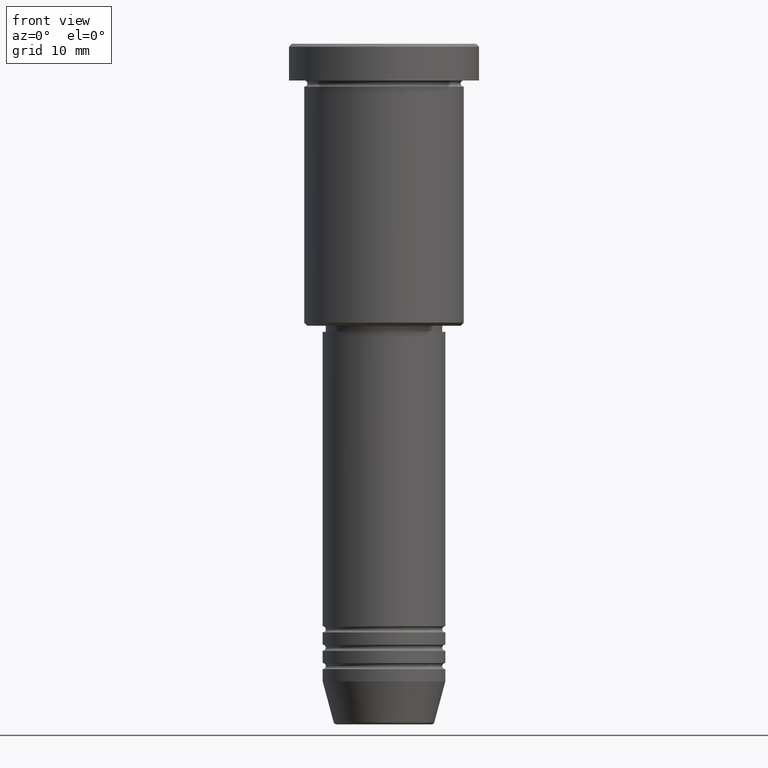
[diagram: clean part render]
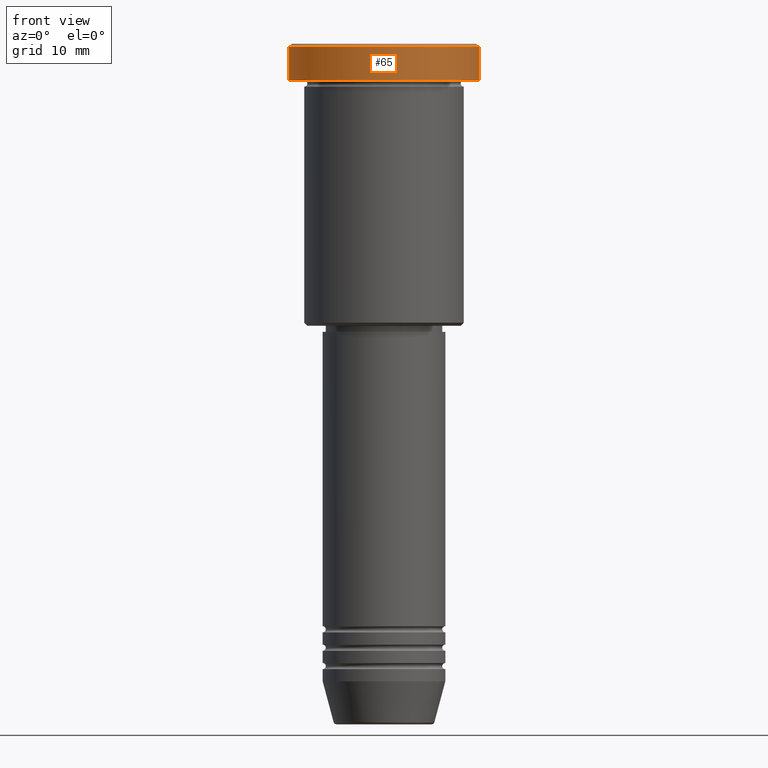
[diagram: same view with one face highlighted and labeled with its STEP entity id]
A machine part, front view. The second image highlights one B-rep face of the part: STEP entity #65.
In plain terms, the highlighted cylindrical surface (partial cylindrical patch) has radius 15.5 mm, axis along (-0, -0, 1).
Its self-contained STEP definition (entity closure, byte-faithful):
#1 = CARTESIAN_POINT ( 'NONE',  ( -15.50000000000000000, 1.898202538678397557E-15, 0.000000000000000000 ) ) ;
#5 = DIRECTION ( 'NONE',  ( 1.000000000000000000, 0.000000000000000000, 0.000000000000000000 ) ) ;
#14 = EDGE_CURVE ( 'NONE', #774, #752, #126, .T. ) ;
#21 = DIRECTION ( 'NONE',  ( 0.000000000000000000, 0.000000000000000000, -1.000000000000000000 ) ) ;
#38 = CARTESIAN_POINT ( 'NONE',  ( 0.000000000000000000, 0.000000000000000000, 0.000000000000000000 ) ) ;
#46 = VERTEX_POINT ( 'NONE', #760 ) ;
#65 = ADVANCED_FACE ( 'NONE', ( #128 ), #577, .T. ) ;
#98 = LINE ( 'NONE', #134, #712 ) ;
#126 = CIRCLE ( 'NONE', #798, 15.50000000000000000 ) ;
#128 = FACE_OUTER_BOUND ( 'NONE', #999, .T. ) ;
#134 = CARTESIAN_POINT ( 'NONE',  ( 15.50000000000000000, 0.000000000000000000, 0.000000000000000000 ) ) ;
#184 = VECTOR ( 'NONE', #932, 1000.000000000000000 ) ;
#280 = EDGE_CURVE ( 'NONE', #786, #752, #1016, .T. ) ;
#297 = AXIS2_PLACEMENT_3D ( 'NONE', #38, #675, #763 ) ;
#318 = CARTESIAN_POINT ( 'NONE',  ( 0.000000000000000000, 0.000000000000000000, -0.5000000000000125455 ) ) ;
#357 = CARTESIAN_POINT ( 'NONE',  ( -15.50000000000000000, 1.898202538678397557E-15, -0.5000000000000125455 ) ) ;
#360 = EDGE_CURVE ( 'NONE', #786, #46, #551, .T. ) ;
#365 = ORIENTED_EDGE ( 'NONE', *, *, #14, .T. ) ;
#380 = EDGE_CURVE ( 'NONE', #46, #774, #98, .T. ) ;
#441 = ORIENTED_EDGE ( 'NONE', *, *, #380, .T. ) ;
#551 = CIRCLE ( 'NONE', #679, 15.50000000000000000 ) ;
#560 = ORIENTED_EDGE ( 'NONE', *, *, #280, .F. ) ;
#577 = CYLINDRICAL_SURFACE ( 'NONE', #297, 15.50000000000000000 ) ;
#582 = DIRECTION ( 'NONE',  ( 1.000000000000000000, 0.000000000000000000, 0.000000000000000000 ) ) ;
#636 = CARTESIAN_POINT ( 'NONE',  ( -15.50000000000000000, 1.898202538678397557E-15, -5.999999999999995559 ) ) ;
#675 = DIRECTION ( 'NONE',  ( -0.000000000000000000, -0.000000000000000000, 1.000000000000000000 ) ) ;
#679 = AXIS2_PLACEMENT_3D ( 'NONE', #1096, #738, #5 ) ;
#712 = VECTOR ( 'NONE', #1050, 1000.000000000000000 ) ;
#738 = DIRECTION ( 'NONE',  ( -0.000000000000000000, -0.000000000000000000, 1.000000000000000000 ) ) ;
#752 = VERTEX_POINT ( 'NONE', #357 ) ;
#760 = CARTESIAN_POINT ( 'NONE',  ( 15.50000000000000000, 0.000000000000000000, -5.999999999999995559 ) ) ;
#763 = DIRECTION ( 'NONE',  ( 1.000000000000000000, 0.000000000000000000, 0.000000000000000000 ) ) ;
#774 = VERTEX_POINT ( 'NONE', #1106 ) ;
#786 = VERTEX_POINT ( 'NONE', #636 ) ;
#798 = AXIS2_PLACEMENT_3D ( 'NONE', #318, #21, #582 ) ;
#932 = DIRECTION ( 'NONE',  ( -0.000000000000000000, -0.000000000000000000, 1.000000000000000000 ) ) ;
#988 = ORIENTED_EDGE ( 'NONE', *, *, #360, .T. ) ;
#999 = EDGE_LOOP ( 'NONE', ( #560, #988, #441, #365 ) ) ;
#1016 = LINE ( 'NONE', #1, #184 ) ;
#1050 = DIRECTION ( 'NONE',  ( -0.000000000000000000, -0.000000000000000000, 1.000000000000000000 ) ) ;
#1096 = CARTESIAN_POINT ( 'NONE',  ( 0.000000000000000000, 0.000000000000000000, -5.999999999999995559 ) ) ;
#1106 = CARTESIAN_POINT ( 'NONE',  ( 15.50000000000000000, 0.000000000000000000, -0.5000000000000125455 ) ) ;